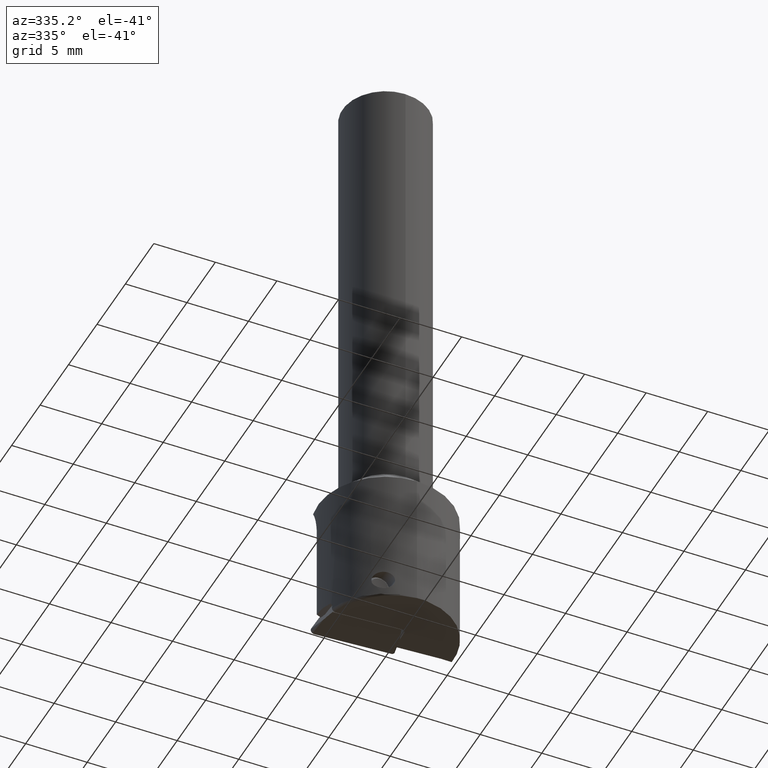
[diagram: clean part render]
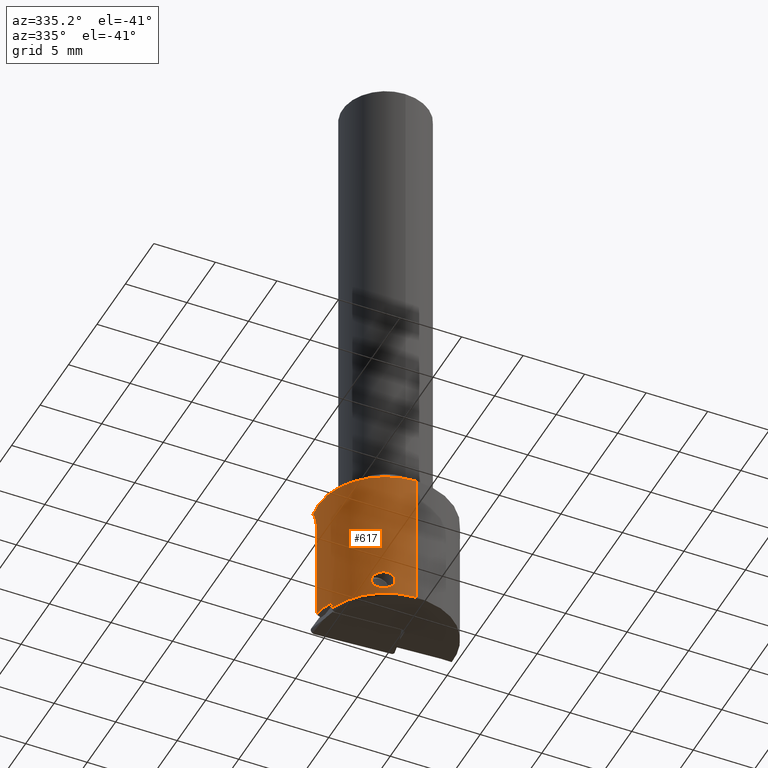
[diagram: same view with one face highlighted and labeled with its STEP entity id]
A machine part, auxiliary view. The second image highlights one B-rep face of the part: STEP entity #617.
In plain terms, the highlighted cylindrical surface (partial cylindrical patch) has radius 5.5 mm, axis along (-0, -0, 1).
Its self-contained STEP definition (entity closure, byte-faithful):
#547=VERTEX_POINT('NONE',#1579);
#617=ADVANCED_FACE('NONE',(#1656,#1657),#1658,.T.);
#633=VERTEX_POINT('NONE',#1676);
#735=EDGE_CURVE('NONE',#633,#1075,#1786,.T.);
#865=EDGE_CURVE('NONE',#1391,#1467,#1934,.T.);
#1019=EDGE_CURVE('NONE',#1075,#1095,#2107,.T.);
#1029=EDGE_CURVE('NONE',#547,#1439,#2117,.T.);
#1075=VERTEX_POINT('NONE',#2169);
#1095=VERTEX_POINT('NONE',#2190);
#1155=VERTEX_POINT('NONE',#2256);
#1181=EDGE_CURVE('NONE',#1155,#1095,#2284,.T.);
#1183=EDGE_CURVE('NONE',#1155,#1369,#2286,.T.);
#1293=EDGE_CURVE('NONE',#1467,#1391,#2405,.T.);
#1369=VERTEX_POINT('NONE',#2490);
#1391=VERTEX_POINT('NONE',#2513);
#1407=EDGE_CURVE('NONE',#547,#1369,#2531,.T.);
#1413=VERTEX_POINT('NONE',#2538);
#1439=VERTEX_POINT('NONE',#2567);
#1461=EDGE_CURVE('NONE',#1413,#633,#2590,.T.);
#1467=VERTEX_POINT('NONE',#2596);
#1475=EDGE_CURVE('NONE',#1439,#1413,#2604,.T.);
#1579=CARTESIAN_POINT('',(-5.19193942482592,-1.81487327627531,-16.3697561106386));
#1656=FACE_OUTER_BOUND('',#2836,.T.);
#1657=FACE_BOUND('',#2837,.T.);
#1658=CYLINDRICAL_SURFACE('',#2838,5.5);
#1676=CARTESIAN_POINT('',(-5.39223240722244,1.08343420035556,-4.99999999999999));
#1786=B_SPLINE_CURVE_WITH_KNOTS('',3,(#3061,#3062,#3063,#3064,#3065,#3066,#3067,#3068),.UNSPECIFIED.,.F.,.F.,(4,2,2,4),(0.000799514902478356,0.00152126247808948,0.00224301005370061,0.00368650520492287),.UNSPECIFIED.);
#1934=B_SPLINE_CURVE_WITH_KNOTS('',3,(#3278,#3279,#3280,#3281,#3282,#3283,#3284,#3285,#3286,#3287,#3288,#3289,#3290,#3291,#3292,#3293),.UNSPECIFIED.,.F.,.F.,(4,2,2,2,2,2,2,4),(0.00260182821581813,0.00292461671579394,0.00324740521576974,0.00357019371574555,0.00389298221572136,0.00453855921567298,0.00486134771564879,0.0051841362156246),.UNSPECIFIED.);
#2107=LINE('',#3571,#3572);
#2117=CIRCLE('',#3588,5.5);
#2169=CARTESIAN_POINT('',(-5.49636243346452,0.2,-7.68800430926332));
#2190=CARTESIAN_POINT('',(-5.49636243346452,0.2,-15.5394320408771));
#2256=CARTESIAN_POINT('',(-5.24313782132388,-1.66117602517104,-15.831781080417));
#2284=(B_SPLINE_CURVE(3,(#3841,#3842,#3843,#3844),.UNSPECIFIED.,.F.,.F.)B_SPLINE_CURVE_WITH_KNOTS((4,4),(5.80694863348475,6.15014377781279),.UNSPECIFIED.)RATIONAL_B_SPLINE_CURVE((1.0,0.99020881886028,0.99020881886028,1.0))BOUNDED_CURVE()REPRESENTATION_ITEM('')GEOMETRIC_REPRESENTATION_ITEM()CURVE());
#2286=(B_SPLINE_CURVE(3,(#3854,#3855,#3856,#3857),.UNSPECIFIED.,.F.,.F.)B_SPLINE_CURVE_WITH_KNOTS((4,4),(1.47764070019437,1.51159530475054),.UNSPECIFIED.)RATIONAL_B_SPLINE_CURVE((1.0,0.999903926043426,0.999903926043426,1.0))BOUNDED_CURVE()REPRESENTATION_ITEM('')GEOMETRIC_REPRESENTATION_ITEM()CURVE());
#2405=B_SPLINE_CURVE_WITH_KNOTS('',3,(#4055,#4056,#4057,#4058,#4059,#4060,#4061,#4062,#4063,#4064,#4065,#4066,#4067,#4068),.UNSPECIFIED.,.F.,.F.,(4,2,2,2,2,2,4),(0.0,0.000650457053954529,0.00130091410790906,0.00162614263488632,0.00195137116186359,0.00227659968884086,0.00260182821581813),.UNSPECIFIED.);
#2490=CARTESIAN_POINT('',(-5.18372192775438,-1.83821298431884,-16.1029820269698));
#2513=CARTESIAN_POINT('',(-1.65685243501498,-5.24450569725927,-15.0537368054131));
#2531=(B_SPLINE_CURVE(3,(#4252,#4253,#4254,#4255),.UNSPECIFIED.,.F.,.F.)B_SPLINE_CURVE_WITH_KNOTS((4,4),(5.04866814765273,5.05316707410829),.UNSPECIFIED.)RATIONAL_B_SPLINE_CURVE((1.0,0.999998313305773,0.999998313305773,1.0))BOUNDED_CURVE()REPRESENTATION_ITEM('')GEOMETRIC_REPRESENTATION_ITEM()CURVE());
#2538=CARTESIAN_POINT('',(0.0,-5.5,-4.99999999999999));
#2567=CARTESIAN_POINT('',(0.0,-5.5,-16.3697561106386));
#2590=CIRCLE('',#4337,5.5);
#2596=CARTESIAN_POINT('',(-3.2147145092323,-4.46269096220334,-15.0672928380239));
#2604=LINE('',#4356,#4357);
#2836=EDGE_LOOP('',(#4607,#4608,#4609,#4610,#4611,#4612,#4613,#4614));
#2837=EDGE_LOOP('',(#4615,#4616));
#2838=AXIS2_PLACEMENT_3D('',#4617,#4618,#4619);
#3061=CARTESIAN_POINT('',(-5.39223240722244,1.08343420035556,-4.99999999999999));
#3062=CARTESIAN_POINT('',(-5.42410737721465,0.924793051576207,-5.17941983037133));
#3063=CARTESIAN_POINT('',(-5.44376411494984,0.792603546215071,-5.37980285961335));
#3064=CARTESIAN_POINT('',(-5.47174278441264,0.568171648286421,-5.80965566438121));
#3065=CARTESIAN_POINT('',(-5.47951210402861,0.479519723261509,-6.03250114644629));
#3066=CARTESIAN_POINT('',(-5.49527683438106,0.268143182434374,-6.71918313139317));
#3067=CARTESIAN_POINT('',(-5.49636243346452,0.2,-7.20356380666663));
#3068=CARTESIAN_POINT('',(-5.49636243346452,0.2,-7.68800430926332));
#3278=CARTESIAN_POINT('',(-1.65685243501498,-5.24450569725927,-15.0537368054131));
#3279=CARTESIAN_POINT('',(-1.66248906582678,-5.24272496404533,-14.945616852248));
#3280=CARTESIAN_POINT('',(-1.69091649361852,-5.23385672496098,-14.8385523958716));
#3281=CARTESIAN_POINT('',(-1.78493138978755,-5.20254502523155,-14.6467853469344));
#3282=CARTESIAN_POINT('',(-1.8510303226265,-5.17982701687864,-14.5607668171044));
#3283=CARTESIAN_POINT('',(-2.00684895590985,-5.12147229302592,-14.4219462017893));
#3284=CARTESIAN_POINT('',(-2.09607998719029,-5.08597098436063,-14.3689496872822));
#3285=CARTESIAN_POINT('',(-2.28541697820542,-5.00375073341872,-14.2988655191844));
#3286=CARTESIAN_POINT('',(-2.38282116210156,-4.9582275198884,-14.2824079502048));
#3287=CARTESIAN_POINT('',(-2.67439410998156,-4.81092958404575,-14.2861441353742));
#3288=CARTESIAN_POINT('',(-2.85864263459671,-4.701732244392,-14.3583764533731));
#3289=CARTESIAN_POINT('',(-3.06950214591712,-4.56455775829188,-14.5674737252291));
#3290=CARTESIAN_POINT('',(-3.12702438706587,-4.52480416832549,-14.6536443944977));
#3291=CARTESIAN_POINT('',(-3.20259164607159,-4.47163739893038,-14.8483826803017));
#3292=CARTESIAN_POINT('',(-3.22039714808365,-4.45859745411127,-14.9580893042004));
#3293=CARTESIAN_POINT('',(-3.2147145092323,-4.46269096220334,-15.0672928380239));
#3571=CARTESIAN_POINT('',(-5.49636243346452,0.2,6.7773150726959E-018));
#3572=VECTOR('',#5208,1000.0);
#3588=AXIS2_PLACEMENT_3D('',#5214,#5215,#5216);
#3841=CARTESIAN_POINT('',(-5.24313782132388,-1.66117602517104,-15.831781080417));
#3842=CARTESIAN_POINT('',(-5.4341122836299,-1.05840701631748,-15.681367582225));
#3843=CARTESIAN_POINT('',(-5.5193551156863,-0.431880574041986,-15.5829543203043));
#3844=CARTESIAN_POINT('',(-5.49636243346452,0.2,-15.5394320408771));
#3854=CARTESIAN_POINT('',(-5.24313782132388,-1.66117602517104,-15.831781080417));
#3855=CARTESIAN_POINT('',(-5.22433539306638,-1.72052176652287,-15.9220599056992));
#3856=CARTESIAN_POINT('',(-5.20452819225372,-1.7795397563306,-16.0124689071672));
#3857=CARTESIAN_POINT('',(-5.18372192775438,-1.83821298431884,-16.1029820269698));
#4055=CARTESIAN_POINT('',(-3.2147145092323,-4.46269096220334,-15.0672928380239));
#4056=CARTESIAN_POINT('',(-3.20326331897547,-4.47093986578604,-15.2873508911999));
#4057=CARTESIAN_POINT('',(-3.10079282830157,-4.54572905602186,-15.4858506986219));
#4058=CARTESIAN_POINT('',(-2.81581111904611,-4.72755502946969,-15.7598711667575));
#4059=CARTESIAN_POINT('',(-2.62933848824849,-4.8356320014211,-15.8420034440758));
#4060=CARTESIAN_POINT('',(-2.33851861335296,-4.97925899404118,-15.8544475771297));
#4061=CARTESIAN_POINT('',(-2.23781196386783,-5.0252040905121,-15.8397151603068));
#4062=CARTESIAN_POINT('',(-2.04927106001425,-5.10499428594368,-15.7702145887098));
#4063=CARTESIAN_POINT('',(-1.95871921459818,-5.14002251672152,-15.7141939542724));
#4064=CARTESIAN_POINT('',(-1.80824757800368,-5.19486796085176,-15.5675305303834));
#4065=CARTESIAN_POINT('',(-1.74730394374545,-5.21523250865332,-15.4762949226745));
#4066=CARTESIAN_POINT('',(-1.66843118987398,-5.24099785878591,-15.2729018674751));
#4067=CARTESIAN_POINT('',(-1.65117319571104,-5.24629989141463,-15.1626740603259));
#4068=CARTESIAN_POINT('',(-1.65685243501498,-5.24450569725927,-15.0537368054131));
#4252=CARTESIAN_POINT('',(-5.19193942482592,-1.81487327627531,-16.3697561106386));
#4253=CARTESIAN_POINT('',(-5.18921776206524,-1.82265933405301,-16.2807610630071));
#4254=CARTESIAN_POINT('',(-5.18647859175458,-1.83043924985653,-16.1918362184619));
#4255=CARTESIAN_POINT('',(-5.18372192775438,-1.83821298431884,-16.1029820269698));
#4337=AXIS2_PLACEMENT_3D('',#5716,#5717,#5718);
#4356=CARTESIAN_POINT('',(0.0,-5.5,0.0));
#4357=VECTOR('',#5721,1000.0);
#4607=ORIENTED_EDGE('',*,*,#1029,.T.);
#4608=ORIENTED_EDGE('',*,*,#1475,.T.);
#4609=ORIENTED_EDGE('',*,*,#1461,.T.);
#4610=ORIENTED_EDGE('',*,*,#735,.T.);
#4611=ORIENTED_EDGE('',*,*,#1019,.T.);
#4612=ORIENTED_EDGE('',*,*,#1181,.F.);
#4613=ORIENTED_EDGE('',*,*,#1183,.T.);
#4614=ORIENTED_EDGE('',*,*,#1407,.F.);
#4615=ORIENTED_EDGE('',*,*,#1293,.F.);
#4616=ORIENTED_EDGE('',*,*,#865,.F.);
#4617=CARTESIAN_POINT('',(0.0,0.0,0.0));
#4618=DIRECTION('',(-0.0,-0.0,1.0));
#4619=DIRECTION('',(0.0,-1.0,0.0));
#5208=DIRECTION('',(0.0,0.0,-1.0));
#5214=CARTESIAN_POINT('',(0.0,0.0,-16.3697561106386));
#5215=DIRECTION('',(0.0,0.0,1.0));
#5216=DIRECTION('',(0.0,-1.0,0.0));
#5716=CARTESIAN_POINT('',(0.0,0.0,-4.99999999999999));
#5717=DIRECTION('',(0.0,0.0,-1.0));
#5718=DIRECTION('',(0.0,1.0,0.0));
#5721=DIRECTION('',(0.0,0.0,1.0));